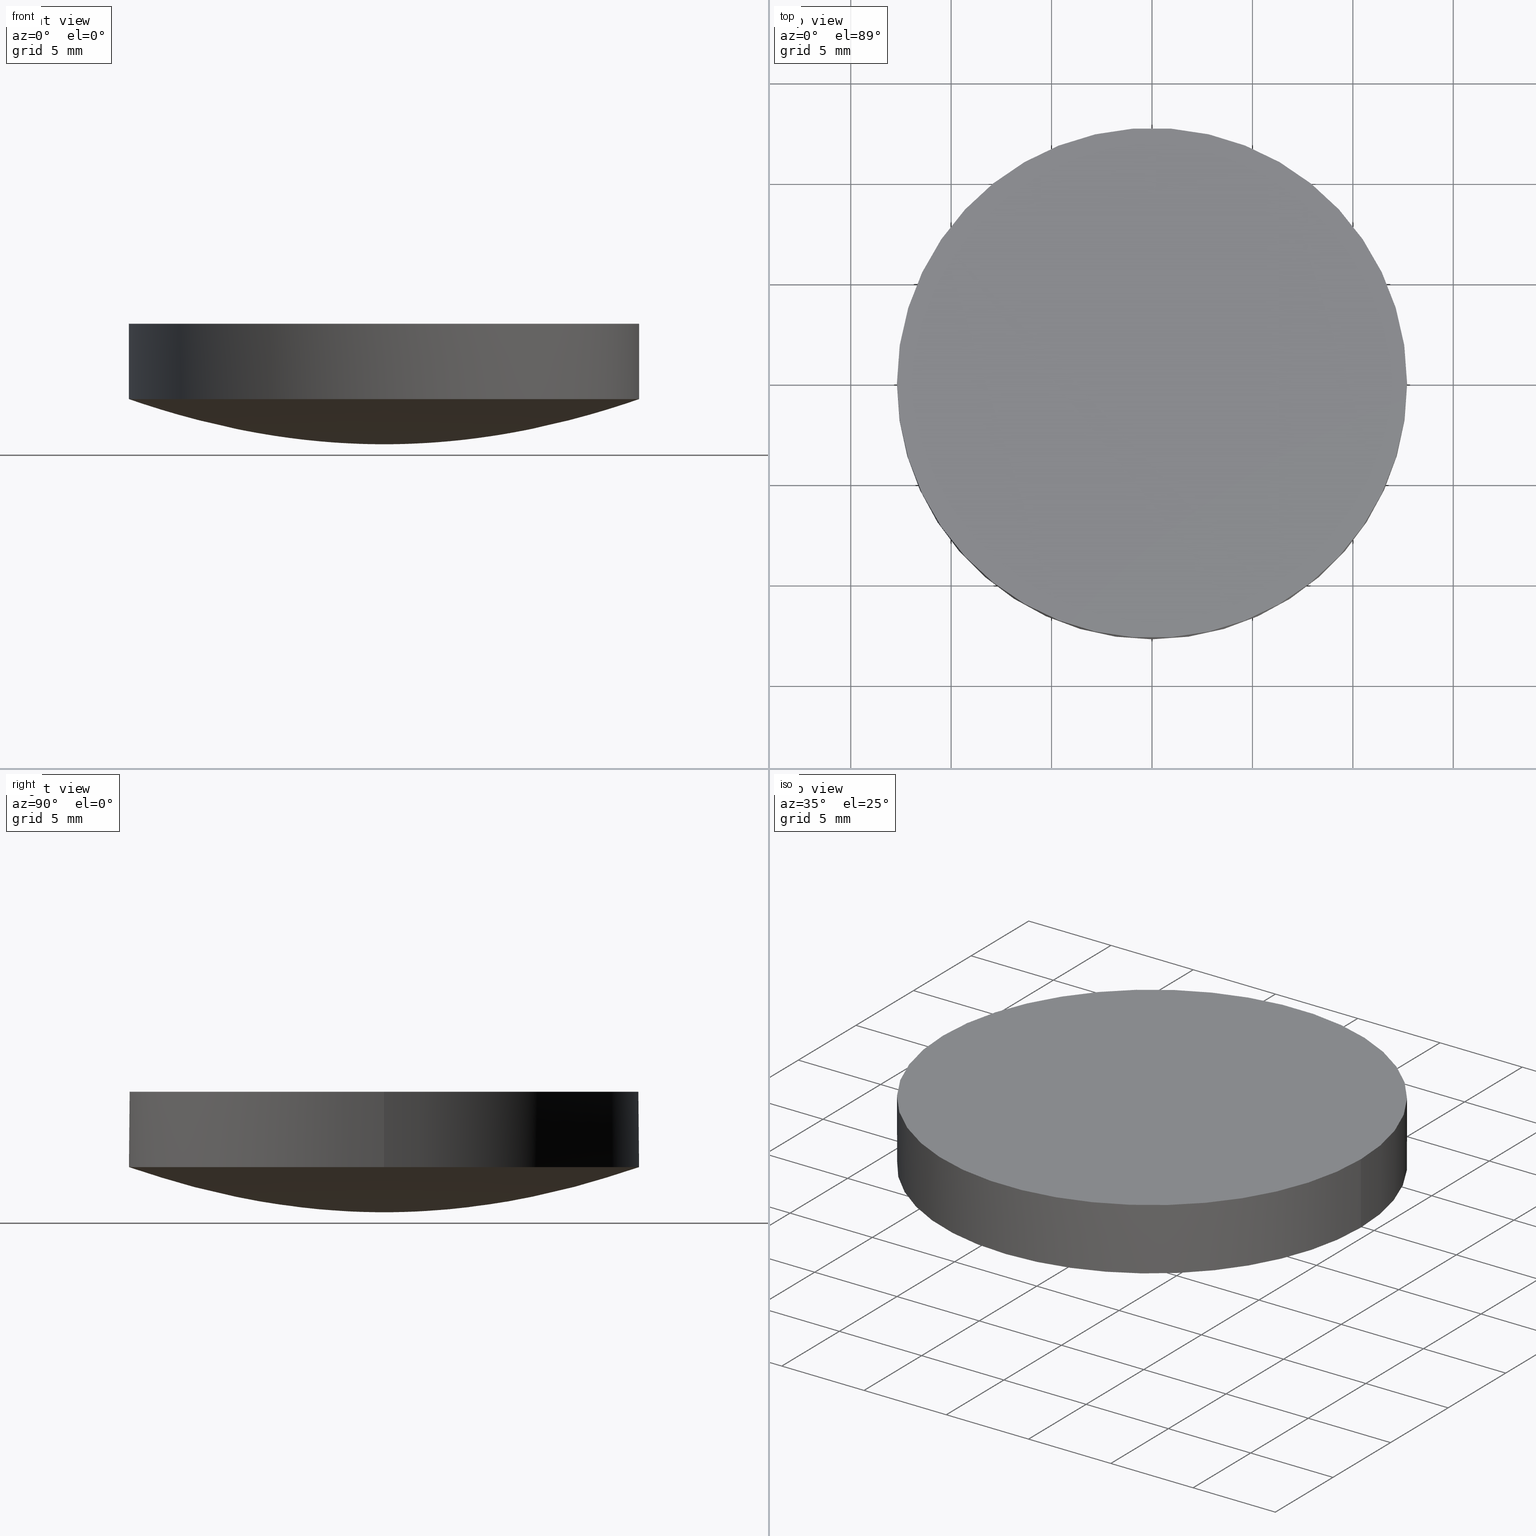
[diagram: canonical four-view strip — front | top / right | iso, engineering-drawing reading convention]
A machine part, canonical four-view strip (front | top / right | iso — engineering-drawing reading convention). The complete STEP part file that produces these views, byte-faithful:
ISO-10303-21;
HEADER;
FILE_DESCRIPTION (( 'STEP AP203' ),
    '1' );
FILE_NAME ('140004.STEP',
    '2021-03-15T05:14:45',
    ( '' ),
    ( '' ),
    'SwSTEP 2.0',
    'SolidWorks 2020',
    '' );
FILE_SCHEMA (( 'CONFIG_CONTROL_DESIGN' ));
ENDSEC;

DATA;
#1 = CARTESIAN_POINT ( 'NONE',  ( 0.9709507383550212145, 0.9709507383550199933, 0.007996846882740939536 ) ) ;
#2 = CARTESIAN_POINT ( 'NONE',  ( 7.588144358352749919, -1.393919504988710285E-15, 0.8112916420088790437 ) ) ;
#3 = EDGE_CURVE ( 'NONE', #450, #67, #276, .T. ) ;
#4 = CARTESIAN_POINT ( 'NONE',  ( -11.12088207166359943, 6.809576316379000233E-16, 1.723977609967809910 ) ) ;
#5 = CARTESIAN_POINT ( 'NONE',  ( -9.292796699924739176E-16, -7.588144358352749919, 0.8112916420088790437 ) ) ;
#6 = CARTESIAN_POINT ( 'NONE',  ( -3.529391070972860422, -3.529391070972860422, 0.1742189932542360098 ) ) ;
#7 = AXIS2_PLACEMENT_3D ( 'NONE', #388, #178, #340 ) ;
#8 = CARTESIAN_POINT ( 'NONE',  ( -3.458006766538920453E-16, -2.823676809465809789, 0.1104526157183659957 ) ) ;
#9 = CARTESIAN_POINT ( 'NONE',  ( 0.000000000000000000, 0.9709507383550211035, 0.007996846882740939536 ) ) ;
#10 = CARTESIAN_POINT ( 'NONE',  ( 0.000000000000000000, 5.117593248833890662, 0.3689892521256640801 ) ) ;
#11 = EDGE_CURVE ( 'NONE', #311, #67, #441, .T. ) ;
#12 = DIRECTION ( 'NONE',  ( 6.993530863780509846E-17, 4.890947394265059749E-33, 1.000000000000000000 ) ) ;
#13 = CARTESIAN_POINT ( 'NONE',  ( 0.000000000000000000, 0.000000000000000000, 0.000000000000000000 ) ) ;
#14 = CARTESIAN_POINT ( 'NONE',  ( -2.269407750182939844E-16, -1.853112057911709964, 0.04462971761608650750 ) ) ;
#15 = CARTESIAN_POINT ( 'NONE',  ( 0.000000000000000000, 7.588144358352749919, 0.8112916420088790437 ) ) ;
#16 = CC_DESIGN_APPROVAL ( #514, ( #327 ) ) ;
#17 = CARTESIAN_POINT ( 'NONE',  ( -6.267244191522530427E-16, -5.117593248833890662, 0.3689892521256640801 ) ) ;
#18 = CARTESIAN_POINT ( 'NONE',  ( -2.823676809465809345, 2.823676809465809345, 0.1104526157183659957 ) ) ;
#19 = CARTESIAN_POINT ( 'NONE',  ( -7.347954222613319716E-16, -6.000059958291039663, 0.5076367197546349797 ) ) ;
#20 = CARTESIAN_POINT ( 'NONE',  ( -3.529391070972860422, 3.529391070972860422, 0.1742189932542360098 ) ) ;
#21 = CARTESIAN_POINT ( 'NONE',  ( 5.117593248833890662, -9.400866287283799585E-16, 0.3689892521256640801 ) ) ;
#22 = CARTESIAN_POINT ( 'NONE',  ( 0.000000000000000000, 0.000000000000000000, 0.000000000000000000 ) ) ;
#23 = EDGE_LOOP ( 'NONE', ( #273, #398, #524, #73 ) ) ;
#24 = CARTESIAN_POINT ( 'NONE',  ( -8.293787562700359217, 8.293787562700359217, 0.9682949744517168611 ) ) ;
#25 = CARTESIAN_POINT ( 'NONE',  ( -9.176139476843300002, -9.176139476843300002, 1.183323889670500062 ) ) ;
#26 = CARTESIAN_POINT ( 'NONE',  ( 1.150626804807467557E-15, -8.881784197001250351E-16, 5.999999999999999112 ) ) ;
#27 = CARTESIAN_POINT ( 'NONE',  ( 1.853112057911709742, -1.853112057911709742, 0.04462971761608650056 ) ) ;
#28 = APPROVAL_DATE_TIME ( #403, #98 ) ;
#29 = EDGE_LOOP ( 'NONE', ( #277, #530, #234, #534, #448 ) ) ;
#30 = COORDINATED_UNIVERSAL_TIME_OFFSET ( 8, 0, .AHEAD. ) ;
#31 = CARTESIAN_POINT ( 'NONE',  ( 0.000000000000000000, 9.176139476843300002, 1.183323889670500062 ) ) ;
#32 = CARTESIAN_POINT ( 'NONE',  ( 1.734723475976807094E-15, -1.345898117247522881E-15, 2.247269223239400482 ) ) ;
#33 = CARTESIAN_POINT ( 'NONE',  ( 1.853112057911709964, -3.404111625274400151E-16, 0.04462971761608650750 ) ) ;
#34 = CARTESIAN_POINT ( 'NONE',  ( -1.555301434917140010E-15, -12.69999999999999929, 2.247269223239400038 ) ) ;
#35 = CARTESIAN_POINT ( 'NONE',  ( -5.117593248833889774, 5.117593248833889774, 0.3689892521256640245 ) ) ;
#36 = CALENDAR_DATE ( 2021, 15, 3 ) ;
#37 = CARTESIAN_POINT ( 'NONE',  ( -4.411899105315640668, 2.701509058742939955E-16, 0.2736846880030949780 ) ) ;
#38 = CARTESIAN_POINT ( 'NONE',  ( -11.12088207166360121, 11.12088207166360121, 1.723977609967809910 ) ) ;
#39 = CARTESIAN_POINT ( 'NONE',  ( 11.12088207166360121, -11.12088207166360121, 1.723977609967809910 ) ) ;
#40 = CARTESIAN_POINT ( 'NONE',  ( 0.000000000000000000, 3.529391070972859978, 0.1742189932542360098 ) ) ;
#41 = CARTESIAN_POINT ( 'NONE',  ( 12.69999999999999929, -2.332952152375710015E-15, 2.247269223239400038 ) ) ;
#42 = CARTESIAN_POINT ( 'NONE',  ( 0.000000000000000000, 6.705730617368449664, 0.6340659673807349517 ) ) ;
#43 = CARTESIAN_POINT ( 'NONE',  ( -1.555301434917140010E-15, -12.69999999999999929, 2.247269223239400038 ) ) ;
#44 = CARTESIAN_POINT ( 'NONE',  ( 0.000000000000000000, 11.12088207166359943, 1.723977609967809910 ) ) ;
#45 = CARTESIAN_POINT ( 'NONE',  ( 8.293787562700371652, 8.293787562700359217, 0.9682949744517168611 ) ) ;
#46 = CARTESIAN_POINT ( 'NONE',  ( -12.00062017183519991, -12.00062017183519991, 2.005515679943810081 ) ) ;
#47 = LOCAL_TIME ( 13, 14, 45.00000000000000000, #72 ) ;
#48 = CC_DESIGN_DATE_AND_TIME_ASSIGNMENT ( #188, #309, ( #163 ) ) ;
#49 = CARTESIAN_POINT ( 'NONE',  ( -1.015696039146910080E-15, -8.293787562700359217, 0.9682949744517169721 ) ) ;
#50 = CARTESIAN_POINT ( 'NONE',  ( -7.588144358352750807, 7.588144358352750807, 0.8112916420088790437 ) ) ;
#51 = CARTESIAN_POINT ( 'NONE',  ( -0.2646510451225539962, 1.620520276501689993E-17, 0.000000000000000000 ) ) ;
#52 = CARTESIAN_POINT ( 'NONE',  ( 5.117593248833900432, 5.117593248833889774, 0.3689892521256640245 ) ) ;
#53 = DATE_AND_TIME ( #210, #469 ) ;
#54 = CARTESIAN_POINT ( 'NONE',  ( 12.70000000000000107, -8.881784197001250351E-16, 2.247269223239399150 ) ) ;
#55 = CARTESIAN_POINT ( 'NONE',  ( 0.9709507383550211035, -1.783607570784349902E-16, 0.007996846882740939536 ) ) ;
#56 = CARTESIAN_POINT ( 'NONE',  ( 0.000000000000000000, 9.881753641688270307, 1.370214453410329991 ) ) ;
#57 = DIRECTION ( 'NONE',  ( 6.993530863780509846E-17, 4.890947394265059749E-33, 1.000000000000000000 ) ) ;
#58 = CARTESIAN_POINT ( 'NONE',  ( -3.458006766538920453E-16, -2.823676809465809789, 0.1104526157183659957 ) ) ;
#59 = CARTESIAN_POINT ( 'NONE',  ( -5.117593248833900432, -5.117593248833889774, 0.3689892521256640245 ) ) ;
#60 = CC_DESIGN_PERSON_AND_ORGANIZATION_ASSIGNMENT ( #361, #527, ( #163 ) ) ;
#61 = CARTESIAN_POINT ( 'NONE',  ( 0.000000000000000000, 0.000000000000000000, 0.000000000000000000 ) ) ;
#62 = CARTESIAN_POINT ( 'NONE',  ( 4.411899105315639780, -4.411899105315650438, 0.2736846880030949780 ) ) ;
#63 = CARTESIAN_POINT ( 'NONE',  ( 9.176139476843300002, 9.176139476843291121, 1.183323889670500062 ) ) ;
#64 = CARTESIAN_POINT ( 'NONE',  ( 7.588144358352750807, 7.588144358352750807, 0.8112916420088790437 ) ) ;
#65 =( LENGTH_UNIT ( ) NAMED_UNIT ( * ) SI_UNIT ( .MILLI., .METRE. ) );
#66 = CC_DESIGN_DATE_AND_TIME_ASSIGNMENT ( #326, #278, ( #371 ) ) ;
#67 = VERTEX_POINT ( 'NONE', #406 ) ;
#68 = CARTESIAN_POINT ( 'NONE',  ( -1.015696039146910080E-15, -8.293787562700359217, 0.9682949744517169721 ) ) ;
#69 = MECHANICAL_CONTEXT ( 'NONE', #532, 'mechanical' ) ;
#70 = CARTESIAN_POINT ( 'NONE',  ( 1.150626804807467557E-15, -8.881784197001250351E-16, 5.999999999999999112 ) ) ;
#71 = CARTESIAN_POINT ( 'NONE',  ( 4.411899105315650438, 4.411899105315639780, 0.2736846880030949780 ) ) ;
#72 = COORDINATED_UNIVERSAL_TIME_OFFSET ( 8, 0, .AHEAD. ) ;
#73 = ORIENTED_EDGE ( 'NONE', *, *, #457, .T. ) ;
#74 = PRODUCT_RELATED_PRODUCT_CATEGORY ( 'detail', '', ( #325 ) ) ;
#75 = DIRECTION ( 'NONE',  ( 6.993530863780509846E-17, 4.890947394265059749E-33, 1.000000000000000000 ) ) ;
#76 = EDGE_LOOP ( 'NONE', ( #405, #324, #487, #116 ) ) ;
#77 = CARTESIAN_POINT ( 'NONE',  ( -1.853112057911709964, 1.134703875091469922E-16, 0.04462971761608650750 ) ) ;
#78 = CARTESIAN_POINT ( 'NONE',  ( -12.00062017183519991, -12.00062017183519991, 2.005515679943810081 ) ) ;
#79 = PERSON_AND_ORGANIZATION ( #100, #505 ) ;
#80 = CARTESIAN_POINT ( 'NONE',  ( 4.411899105315640668, -8.104527176228809510E-16, 0.2736846880030949780 ) ) ;
#81 = CARTESIAN_POINT ( 'NONE',  ( 0.000000000000000000, 12.69999999999999929, 2.247269223239400038 ) ) ;
#82 = CARTESIAN_POINT ( 'NONE',  ( -9.881753641688270307, 6.050828983628121126E-16, 1.370214453410329991 ) ) ;
#83 = CARTESIAN_POINT ( 'NONE',  ( -6.705730617368449664, 4.106075768252340420E-16, 0.6340659673807349517 ) ) ;
#84 = CARTESIAN_POINT ( 'NONE',  ( 0.000000000000000000, 12.00062017183519991, 2.005515679943810081 ) ) ;
#85 = CARTESIAN_POINT ( 'NONE',  ( -0.9709507383550212145, -0.9709507383550212145, 0.007996846882740939536 ) ) ;
#86 = CARTESIAN_POINT ( 'NONE',  ( -12.69999999999999929, -12.69999999999999929, 2.247269223239399594 ) ) ;
#87 = CARTESIAN_POINT ( 'NONE',  ( -5.117593248833890662, 3.133622095761270144E-16, 0.3689892521256640801 ) ) ;
#88 = CARTESIAN_POINT ( 'NONE',  ( 0.000000000000000000, 0.000000000000000000, 0.000000000000000000 ) ) ;
#89 = CARTESIAN_POINT ( 'NONE',  ( 9.881753641688270307, -9.881753641688270307, 1.370214453410330213 ) ) ;
#90 = CARTESIAN_POINT ( 'NONE',  ( -0.2646510451225540517, -0.2646510451225540517, 0.000000000000000000 ) ) ;
#91 = CARTESIAN_POINT ( 'NONE',  ( 6.000059958291040552, -6.000059958291040552, 0.5076367197546349797 ) ) ;
#92 = CARTESIAN_POINT ( 'NONE',  ( -12.00062017183519991, 7.348260540610550253E-16, 2.005515679943810081 ) ) ;
#93 = DIRECTION ( 'NONE',  ( 1.000000000000000000, 0.000000000000000000, -6.829619984160658046E-17 ) ) ;
#94 = CARTESIAN_POINT ( 'NONE',  ( 0.000000000000000000, 3.529391070972859978, 0.1742189932542360098 ) ) ;
#95 = CARTESIAN_POINT ( 'NONE',  ( 0.000000000000000000, 12.69999999999999929, 2.247269223239400038 ) ) ;
#96 = CARTESIAN_POINT ( 'NONE',  ( 0.000000000000000000, 0.2646510451225539962, 0.000000000000000000 ) ) ;
#97 = CARTESIAN_POINT ( 'NONE',  ( 2.823676809465809345, -2.823676809465809345, 0.1104526157183659957 ) ) ;
#98 = APPROVAL ( #528, 'δָ��' ) ;
#99 = CARTESIAN_POINT ( 'NONE',  ( 0.000000000000000000, 9.176139476843300002, 1.183323889670500062 ) ) ;
#100 = PERSON ( 'δָ��', 'δָ��', 'δָ��', ('δָ��'), ('δָ��'), ('δָ��') ) ;
#101 = CARTESIAN_POINT ( 'NONE',  ( 0.000000000000000000, 0.000000000000000000, 0.000000000000000000 ) ) ;
#102 = CARTESIAN_POINT ( 'NONE',  ( -0.9709507383550211035, 5.945358569281179488E-17, 0.007996846882740939536 ) ) ;
#103 = CARTESIAN_POINT ( 'NONE',  ( -9.881753641688270307, -9.881753641688270307, 1.370214453410330213 ) ) ;
#104 = CARTESIAN_POINT ( 'NONE',  ( 0.000000000000000000, 2.823676809465809789, 0.1104526157183659957 ) ) ;
#105 = CARTESIAN_POINT ( 'NONE',  ( 2.823676809465809345, 2.823676809465809345, 0.1104526157183659957 ) ) ;
#106 = CARTESIAN_POINT ( 'NONE',  ( -9.292796699924739176E-16, -7.588144358352749919, 0.8112916420088790437 ) ) ;
#107 = APPROVAL_STATUS ( 'not_yet_approved' ) ;
#108 = CARTESIAN_POINT ( 'NONE',  ( 0.000000000000000000, 1.853112057911709964, 0.04462971761608650750 ) ) ;
#109 = DIRECTION ( 'NONE',  ( -1.000000000000000000, 0.000000000000000000, -3.414809992080328407E-17 ) ) ;
#110 = CARTESIAN_POINT ( 'NONE',  ( -7.588144358352750807, -7.588144358352750807, 0.8112916420088790437 ) ) ;
#111 = CARTESIAN_POINT ( 'NONE',  ( 0.000000000000000000, 0.9709507383550211035, 0.007996846882740939536 ) ) ;
#112 = VERTEX_POINT ( 'NONE', #230 ) ;
#113 = CARTESIAN_POINT ( 'NONE',  ( 8.293787562700359217, -8.293787562700371652, 0.9682949744517168611 ) ) ;
#114 = CARTESIAN_POINT ( 'NONE',  ( -2.823676809465809345, 2.823676809465809345, 0.1104526157183659957 ) ) ;
#115 = APPROVAL_ROLE ( '' ) ;
#116 = ORIENTED_EDGE ( 'NONE', *, *, #148, .T. ) ;
#117 = EDGE_CURVE ( 'NONE', #112, #363, #535, .T. ) ;
#118 = PERSON_AND_ORGANIZATION_ROLE ( 'design_owner' ) ;
#119 = CARTESIAN_POINT ( 'NONE',  ( 9.176139476843291121, -9.176139476843300002, 1.183323889670500062 ) ) ;
#120 = CC_DESIGN_APPROVAL ( #98, ( #163 ) ) ;
#121 = CARTESIAN_POINT ( 'NONE',  ( 0.000000000000000000, 12.00062017183519991, 2.005515679943810081 ) ) ;
#122 = PERSON_AND_ORGANIZATION_ROLE ( 'classification_officer' ) ;
#123 = CARTESIAN_POINT ( 'NONE',  ( -12.69999999999999929, 12.69999999999999929, 2.247269223239399594 ) ) ;
#124 = CARTESIAN_POINT ( 'NONE',  ( -7.588144358352749919, 4.646398349962369588E-16, 0.8112916420088790437 ) ) ;
#125 = CARTESIAN_POINT ( 'NONE',  ( -2.823676809465809789, 1.729003383269460226E-16, 0.1104526157183659957 ) ) ;
#126 = CARTESIAN_POINT ( 'NONE',  ( -1.469652108122110051E-15, -12.00062017183519991, 2.005515679943810081 ) ) ;
#127 = CALENDAR_DATE ( 2021, 15, 3 ) ;
#128 = VECTOR ( 'NONE', #12, 1000.000000000000000 ) ;
#129 = FACE_OUTER_BOUND ( 'NONE', #23, .T. ) ;
#130 = CARTESIAN_POINT ( 'NONE',  ( -1.853112057911709742, -1.853112057911709742, 0.04462971761608650056 ) ) ;
#131 = CARTESIAN_POINT ( 'NONE',  ( 0.000000000000000000, 6.000059958291039663, 0.5076367197546349797 ) ) ;
#132 = CARTESIAN_POINT ( 'NONE',  ( 0.000000000000000000, 0.000000000000000000, 0.000000000000000000 ) ) ;
#133 = CARTESIAN_POINT ( 'NONE',  ( -9.881753641688270307, 9.881753641688270307, 1.370214453410330213 ) ) ;
#134 = CARTESIAN_POINT ( 'NONE',  ( 12.70000000000000107, -8.881784197001250351E-16, 5.999999999999998224 ) ) ;
#135 = VECTOR ( 'NONE', #75, 1000.000000000000000 ) ;
#136 = CARTESIAN_POINT ( 'NONE',  ( 8.881784197001250351E-16, -8.881784197001250351E-16, 2.247269223239400038 ) ) ;
#137 = CARTESIAN_POINT ( 'NONE',  ( -0.9709507383550212145, 0.9709507383550212145, 0.007996846882740939536 ) ) ;
#138 = CARTESIAN_POINT ( 'NONE',  ( 12.69999999999999929, -12.69999999999999929, 2.247269223239399594 ) ) ;
#139 = EDGE_CURVE ( 'NONE', #67, #311, #517, .T. ) ;
#140 = CARTESIAN_POINT ( 'NONE',  ( -8.212151536504669993E-16, -6.705730617368449664, 0.6340659673807349517 ) ) ;
#141 = CARTESIAN_POINT ( 'NONE',  ( -4.411899105315640668, 2.701509058742939955E-16, 0.2736846880030949780 ) ) ;
#142 = CARTESIAN_POINT ( 'NONE',  ( 5.117593248833889774, -5.117593248833900432, 0.3689892521256640245 ) ) ;
#143 = CARTESIAN_POINT ( 'NONE',  ( 0.9709507383550211035, -1.783607570784349902E-16, 0.007996846882740939536 ) ) ;
#144 = CARTESIAN_POINT ( 'NONE',  ( -8.212151536504669993E-16, -6.705730617368449664, 0.6340659673807349517 ) ) ;
#145 = AXIS2_PLACEMENT_3D ( 'NONE', #320, #523, #443 ) ;
#146 = CARTESIAN_POINT ( 'NONE',  ( 0.000000000000000000, 12.00062017183519991, 2.005515679943810081 ) ) ;
#147 = CARTESIAN_POINT ( 'NONE',  ( -0.2646510451225539962, 1.620520276501689993E-17, 0.000000000000000000 ) ) ;
#148 = EDGE_CURVE ( 'NONE', #360, #112, #385, .T. ) ;
#149 = CARTESIAN_POINT ( 'NONE',  ( -1.123752983884580088E-15, -9.176139476843300002, 1.183323889670500062 ) ) ;
#150 = CARTESIAN_POINT ( 'NONE',  ( 0.000000000000000000, 5.117593248833890662, 0.3689892521256640801 ) ) ;
#151 = CARTESIAN_POINT ( 'NONE',  ( 0.000000000000000000, 4.411899105315640668, 0.2736846880030949780 ) ) ;
#152 = CARTESIAN_POINT ( 'NONE',  ( 7.588144358352750807, -7.588144358352750807, 0.8112916420088790437 ) ) ;
#153 =( NAMED_UNIT ( * ) SI_UNIT ( $, .STERADIAN. ) SOLID_ANGLE_UNIT ( ) );
#154 = CARTESIAN_POINT ( 'NONE',  ( -8.293787562700359217, 5.078480195734570121E-16, 0.9682949744517169721 ) ) ;
#155 = CARTESIAN_POINT ( 'NONE',  ( -8.293787562700359217, 8.293787562700359217, 0.9682949744517168611 ) ) ;
#156 = COORDINATED_UNIVERSAL_TIME_OFFSET ( 8, 0, .AHEAD. ) ;
#157 =( NAMED_UNIT ( * ) PLANE_ANGLE_UNIT ( ) SI_UNIT ( $, .RADIAN. ) );
#158 = DIRECTION ( 'NONE',  ( 3.414809992080330256E-17, -3.414809992080330256E-17, -1.000000000000000000 ) ) ;
#159 = CARTESIAN_POINT ( 'NONE',  ( -5.403018117485879909E-16, -4.411899105315640668, 0.2736846880030949780 ) ) ;
#160 = CARTESIAN_POINT ( 'NONE',  ( 0.000000000000000000, 4.411899105315640668, 0.2736846880030949780 ) ) ;
#161 = ADVANCED_FACE ( 'NONE', ( #531 ), #162, .T. ) ;
#162 = PLANE ( 'NONE',  #177 ) ;
#163 = PRODUCT_DEFINITION ( 'δ֪', '', #327, #533 ) ;
#164 = CARTESIAN_POINT ( 'NONE',  ( 11.12088207166359943, -2.042872894913700070E-15, 1.723977609967809910 ) ) ;
#165 = CARTESIAN_POINT ( 'NONE',  ( 7.588144358352750807, -7.588144358352750807, 0.8112916420088790437 ) ) ;
#166 = CARTESIAN_POINT ( 'NONE',  ( -12.69999999999999929, -12.69999999999999929, 2.247269223239399594 ) ) ;
#167 = CARTESIAN_POINT ( 'NONE',  ( 12.00062017183519991, -12.00062017183519991, 2.005515679943810081 ) ) ;
#168 = CARTESIAN_POINT ( 'NONE',  ( 6.000059958291039663, -1.102193133392000028E-15, 0.5076367197546349797 ) ) ;
#169 = APPROVAL_ROLE ( '' ) ;
#170 = CARTESIAN_POINT ( 'NONE',  ( 0.000000000000000000, 8.293787562700359217, 0.9682949744517169721 ) ) ;
#171 = CARTESIAN_POINT ( 'NONE',  ( -3.241040553003370126E-17, -0.2646510451225539962, 0.000000000000000000 ) ) ;
#172 = CARTESIAN_POINT ( 'NONE',  ( -6.000059958291040552, 6.000059958291040552, 0.5076367197546349797 ) ) ;
#173 = CARTESIAN_POINT ( 'NONE',  ( -1.361915263275800047E-15, -11.12088207166359943, 1.723977609967809910 ) ) ;
#174 = CARTESIAN_POINT ( 'NONE',  ( 0.000000000000000000, 0.000000000000000000, 0.000000000000000000 ) ) ;
#175 = CARTESIAN_POINT ( 'NONE',  ( 1.853112057911709742, 1.853112057911709742, 0.04462971761608650056 ) ) ;
#176 =( BOUNDED_SURFACE ( )  B_SPLINE_SURFACE ( 3, 2, ( 
 ( #339, #468, #508, #166, #43, #138, #418, #296, #95 ),
 ( #212, #251, #92, #46, #422, #379, #376, #458, #84 ),
 ( #370, #412, #4, #246, #173, #39, #206, #541, #416 ),
 ( #304, #352, #399, #103, #317, #258, #187, #519, #56 ),
 ( #394, #357, #227, #25, #149, #307, #472, #63, #99 ),
 ( #223, #155, #477, #391, #68, #511, #515, #526, #428 ),
 ( #442, #300, #229, #110, #106, #152, #190, #64, #15 ),
 ( #183, #192, #475, #349, #144, #265, #269, #435, #226 ),
 ( #386, #486, #266, #483, #19, #438, #396, #354, #220 ),
 ( #10, #432, #180, #59, #345, #142, #21, #522, #313 ),
 ( #262, #494, #37, #492, #159, #328, #80, #71, #207 ),
 ( #368, #490, #203, #538, #452, #544, #330, #232, #40 ),
 ( #336, #114, #125, #455, #445, #401, #244, #274, #413 ),
 ( #542, #498, #77, #130, #238, #27, #33, #195, #285 ),
 ( #459, #201, #366, #85, #500, #464, #143, #1, #473 ),
 ( #96, #512, #51, #90, #171, #253, #338, #301, #259 ),
 ( #343, #383, #297, #174, #101, #462, #61, #132, #224 ) ),
 .UNSPECIFIED., .F., .T., .T. ) 
 B_SPLINE_SURFACE_WITH_KNOTS ( ( 4, 1, 1, 1, 1, 1, 1, 1, 1, 1, 1, 1, 1, 1, 4 ),
 ( 3, 2, 2, 2, 3 ),
 ( 0.000000000000000000, 0.1713303433968769995, 0.2138002220556740052, 0.2983038402943499756, 0.3403375798742280245, 0.4240257264242249802, 0.4656801333943419996, 0.5486747096414229530, 0.5900148789183859988, 0.6724530698831030495, 0.7135510915708570545, 0.7955825529604799717, 0.8365159926623489950, 0.9387247161821089536, 1.000000000000000000 ),
 ( 0.000000000000000000, 90.00000000000000000, 180.0000000000000000, 270.0000000000000000, 360.0000000000000000 ),
 .UNSPECIFIED. ) 
 GEOMETRIC_REPRESENTATION_ITEM ( )  RATIONAL_B_SPLINE_SURFACE ( (
 ( 1.000000000000000000, 0.7071067811865480168, 1.000000000000000000, 0.7071067811865480168, 1.000000000000000000, 0.7071067811865480168, 1.000000000000000000, 0.7071067811865480168, 1.000000000000000000),
 ( 1.000000000000000000, 0.7071067811865480168, 1.000000000000000000, 0.7071067811865480168, 1.000000000000000000, 0.7071067811865480168, 1.000000000000000000, 0.7071067811865480168, 1.000000000000000000),
 ( 1.000000000000000000, 0.7071067811865480168, 1.000000000000000000, 0.7071067811865480168, 1.000000000000000000, 0.7071067811865480168, 1.000000000000000000, 0.7071067811865480168, 1.000000000000000000),
 ( 1.000000000000000000, 0.7071067811865480168, 1.000000000000000000, 0.7071067811865480168, 1.000000000000000000, 0.7071067811865480168, 1.000000000000000000, 0.7071067811865480168, 1.000000000000000000),
 ( 1.000000000000000000, 0.7071067811865480168, 1.000000000000000000, 0.7071067811865480168, 1.000000000000000000, 0.7071067811865480168, 1.000000000000000000, 0.7071067811865480168, 1.000000000000000000),
 ( 1.000000000000000000, 0.7071067811865480168, 1.000000000000000000, 0.7071067811865480168, 1.000000000000000000, 0.7071067811865480168, 1.000000000000000000, 0.7071067811865480168, 1.000000000000000000),
 ( 1.000000000000000000, 0.7071067811865480168, 1.000000000000000000, 0.7071067811865480168, 1.000000000000000000, 0.7071067811865480168, 1.000000000000000000, 0.7071067811865480168, 1.000000000000000000),
 ( 1.000000000000000000, 0.7071067811865480168, 1.000000000000000000, 0.7071067811865480168, 1.000000000000000000, 0.7071067811865480168, 1.000000000000000000, 0.7071067811865480168, 1.000000000000000000),
 ( 1.000000000000000000, 0.7071067811865480168, 1.000000000000000000, 0.7071067811865480168, 1.000000000000000000, 0.7071067811865480168, 1.000000000000000000, 0.7071067811865480168, 1.000000000000000000),
 ( 1.000000000000000000, 0.7071067811865480168, 1.000000000000000000, 0.7071067811865480168, 1.000000000000000000, 0.7071067811865480168, 1.000000000000000000, 0.7071067811865480168, 1.000000000000000000),
 ( 1.000000000000000000, 0.7071067811865480168, 1.000000000000000000, 0.7071067811865480168, 1.000000000000000000, 0.7071067811865480168, 1.000000000000000000, 0.7071067811865480168, 1.000000000000000000),
 ( 1.000000000000000000, 0.7071067811865480168, 1.000000000000000000, 0.7071067811865480168, 1.000000000000000000, 0.7071067811865480168, 1.000000000000000000, 0.7071067811865480168, 1.000000000000000000),
 ( 1.000000000000000000, 0.7071067811865480168, 1.000000000000000000, 0.7071067811865480168, 1.000000000000000000, 0.7071067811865480168, 1.000000000000000000, 0.7071067811865480168, 1.000000000000000000),
 ( 1.000000000000000000, 0.7071067811865480168, 1.000000000000000000, 0.7071067811865480168, 1.000000000000000000, 0.7071067811865480168, 1.000000000000000000, 0.7071067811865480168, 1.000000000000000000),
 ( 1.000000000000000000, 0.7071067811865480168, 1.000000000000000000, 0.7071067811865480168, 1.000000000000000000, 0.7071067811865480168, 1.000000000000000000, 0.7071067811865480168, 1.000000000000000000),
 ( 1.000000000000000000, 0.7071067811865480168, 1.000000000000000000, 0.7071067811865480168, 1.000000000000000000, 0.7071067811865480168, 1.000000000000000000, 0.7071067811865480168, 1.000000000000000000),
 ( 1.000000000000000000, 0.7071067811865480168, 1.000000000000000000, 0.7071067811865480168, 1.000000000000000000, 0.7071067811865480168, 1.000000000000000000, 0.7071067811865480168, 1.000000000000000000) ) ) 
 REPRESENTATION_ITEM ( '' )  SURFACE ( )  );
#177 = AXIS2_PLACEMENT_3D ( 'NONE', #214, #378, #493 ) ;
#178 = DIRECTION ( 'NONE',  ( 3.414809992080330256E-17, -3.414809992080330256E-17, -1.000000000000000000 ) ) ;
#179 = CARTESIAN_POINT ( 'NONE',  ( 0.000000000000000000, 0.2646510451225539962, 0.000000000000000000 ) ) ;
#180 = CARTESIAN_POINT ( 'NONE',  ( -5.117593248833890662, 3.133622095761270144E-16, 0.3689892521256640801 ) ) ;
#181 = CARTESIAN_POINT ( 'NONE',  ( -1.555301434917141588E-15, -12.70000000000000462, 2.247269223239400926 ) ) ;
#182 = CARTESIAN_POINT ( 'NONE',  ( 5.117593248833889774, -5.117593248833900432, 0.3689892521256640245 ) ) ;
#183 = CARTESIAN_POINT ( 'NONE',  ( 0.000000000000000000, 6.705730617368449664, 0.6340659673807349517 ) ) ;
#184 = CARTESIAN_POINT ( 'NONE',  ( -2.269407750182939844E-16, -1.853112057911709964, 0.04462971761608650750 ) ) ;
#185 = CARTESIAN_POINT ( 'NONE',  ( -9.176139476843300002, -9.176139476843300002, 1.183323889670500062 ) ) ;
#186 = CARTESIAN_POINT ( 'NONE',  ( -4.322257478006169948E-16, -3.529391070972859978, 0.1742189932542360098 ) ) ;
#187 = CARTESIAN_POINT ( 'NONE',  ( 9.881753641688270307, -1.815248695088439888E-15, 1.370214453410329991 ) ) ;
#188 = DATE_AND_TIME ( #198, #419 ) ;
#189 = CARTESIAN_POINT ( 'NONE',  ( 0.000000000000000000, 3.529391070972859978, 0.1742189932542360098 ) ) ;
#190 = CARTESIAN_POINT ( 'NONE',  ( 7.588144358352749919, -1.393919504988710285E-15, 0.8112916420088790437 ) ) ;
#191 = CARTESIAN_POINT ( 'NONE',  ( -8.293787562700371652, -8.293787562700359217, 0.9682949744517168611 ) ) ;
#192 = CARTESIAN_POINT ( 'NONE',  ( -6.705730617368448776, 6.705730617368448776, 0.6340659673807349517 ) ) ;
#193 = APPLICATION_PROTOCOL_DEFINITION ( 'international standard', 'config_control_design', 1994, #425 ) ;
#194 = DIRECTION ( 'NONE',  ( -6.993530863780509846E-17, -4.890947394265059749E-33, -1.000000000000000000 ) ) ;
#195 = CARTESIAN_POINT ( 'NONE',  ( 1.853112057911709742, 1.853112057911709742, 0.04462971761608650056 ) ) ;
#196 = CC_DESIGN_PERSON_AND_ORGANIZATION_ASSIGNMENT ( #275, #118, ( #325 ) ) ;
#197 = PERSON_AND_ORGANIZATION ( #100, #505 ) ;
#198 = CALENDAR_DATE ( 2021, 15, 3 ) ;
#199 = ORIENTED_EDGE ( 'NONE', *, *, #451, .F. ) ;
#200 = ORIENTED_EDGE ( 'NONE', *, *, #252, .F. ) ;
#201 = CARTESIAN_POINT ( 'NONE',  ( -0.9709507383550212145, 0.9709507383550212145, 0.007996846882740939536 ) ) ;
#202 =( GEOMETRIC_REPRESENTATION_CONTEXT ( 3 ) GLOBAL_UNCERTAINTY_ASSIGNED_CONTEXT ( ( #449 ) ) GLOBAL_UNIT_ASSIGNED_CONTEXT ( ( #65, #157, #153 ) ) REPRESENTATION_CONTEXT ( 'NONE', 'WORKASPACE' ) );
#203 = CARTESIAN_POINT ( 'NONE',  ( -3.529391070972859978, 2.161128739003080043E-16, 0.1742189932542360098 ) ) ;
#204 = CARTESIAN_POINT ( 'NONE',  ( -11.12088207166360121, -11.12088207166360121, 1.723977609967809910 ) ) ;
#205 = CARTESIAN_POINT ( 'NONE',  ( -7.588144358352750807, -7.588144358352750807, 0.8112916420088790437 ) ) ;
#206 = CARTESIAN_POINT ( 'NONE',  ( 11.12088207166359943, -2.042872894913700070E-15, 1.723977609967809910 ) ) ;
#207 = CARTESIAN_POINT ( 'NONE',  ( 0.000000000000000000, 4.411899105315640668, 0.2736846880030949780 ) ) ;
#208 = CARTESIAN_POINT ( 'NONE',  ( -9.176139476843300002, 9.176139476843300002, 1.183323889670500062 ) ) ;
#209 = CARTESIAN_POINT ( 'NONE',  ( -6.000059958291040552, -6.000059958291040552, 0.5076367197546349797 ) ) ;
#210 = CALENDAR_DATE ( 2021, 15, 3 ) ;
#211 = CARTESIAN_POINT ( 'NONE',  ( 11.12088207166360121, -11.12088207166360121, 1.723977609967809910 ) ) ;
#212 = CARTESIAN_POINT ( 'NONE',  ( 0.000000000000000000, 12.00062017183519991, 2.005515679943810081 ) ) ;
#213 = CARTESIAN_POINT ( 'NONE',  ( 0.000000000000000000, 0.000000000000000000, 0.000000000000000000 ) ) ;
#214 = CARTESIAN_POINT ( 'NONE',  ( 0.000000000000000000, 26.11199999999999832, 6.000000000000000000 ) ) ;
#215 = CARTESIAN_POINT ( 'NONE',  ( -9.292796699924739176E-16, -7.588144358352749919, 0.8112916420088790437 ) ) ;
#216 = CARTESIAN_POINT ( 'NONE',  ( -1.123752983884580088E-15, -9.176139476843300002, 1.183323889670500062 ) ) ;
#217 = CARTESIAN_POINT ( 'NONE',  ( 0.000000000000000000, 5.117593248833890662, 0.3689892521256640801 ) ) ;
#218 = DIRECTION ( 'NONE',  ( 1.000000000000000000, 0.000000000000000000, -6.829619984160658046E-17 ) ) ;
#219 = CARTESIAN_POINT ( 'NONE',  ( 0.9709507383550212145, 0.9709507383550199933, 0.007996846882740939536 ) ) ;
#220 = CARTESIAN_POINT ( 'NONE',  ( 0.000000000000000000, 6.000059958291039663, 0.5076367197546349797 ) ) ;
#221 = CYLINDRICAL_SURFACE ( 'NONE', #485, 12.69999999999999929 ) ;
#222 = CARTESIAN_POINT ( 'NONE',  ( 0.000000000000000000, 0.2646510451225539962, 0.000000000000000000 ) ) ;
#223 = CARTESIAN_POINT ( 'NONE',  ( 0.000000000000000000, 8.293787562700359217, 0.9682949744517169721 ) ) ;
#224 = CARTESIAN_POINT ( 'NONE',  ( 0.000000000000000000, 0.000000000000000000, 0.000000000000000000 ) ) ;
#225 = CARTESIAN_POINT ( 'NONE',  ( 0.000000000000000000, 1.853112057911709964, 0.04462971761608650750 ) ) ;
#226 = CARTESIAN_POINT ( 'NONE',  ( 0.000000000000000000, 6.705730617368449664, 0.6340659673807349517 ) ) ;
#227 = CARTESIAN_POINT ( 'NONE',  ( -9.176139476843300002, 5.618764919422910300E-16, 1.183323889670500062 ) ) ;
#228 = ORIENTED_EDGE ( 'NONE', *, *, #139, .T. ) ;
#229 = CARTESIAN_POINT ( 'NONE',  ( -7.588144358352749919, 4.646398349962369588E-16, 0.8112916420088790437 ) ) ;
#230 = CARTESIAN_POINT ( 'NONE',  ( 12.70000000000000462, -8.881784197001248379E-16, 2.247269223239400926 ) ) ;
#231 = ADVANCED_FACE ( 'NONE', ( #454 ), #439, .T. ) ;
#232 = CARTESIAN_POINT ( 'NONE',  ( 3.529391070972860422, 3.529391070972860422, 0.1742189932542360098 ) ) ;
#233 = CALENDAR_DATE ( 2021, 15, 3 ) ;
#234 = ORIENTED_EDGE ( 'NONE', *, *, #117, .F. ) ;
#235 = DIRECTION ( 'NONE',  ( -6.993530863780509846E-17, -4.890947394265059749E-33, -1.000000000000000000 ) ) ;
#236 = ADVANCED_FACE ( 'NONE', ( #129 ), #176, .T. ) ;
#237 = VERTEX_POINT ( 'NONE', #88 ) ;
#238 = CARTESIAN_POINT ( 'NONE',  ( -2.269407750182939844E-16, -1.853112057911709964, 0.04462971761608650750 ) ) ;
#239 = CARTESIAN_POINT ( 'NONE',  ( 12.00062017183519991, 12.00062017183519991, 2.005515679943810081 ) ) ;
#240 = CARTESIAN_POINT ( 'NONE',  ( 0.000000000000000000, 8.293787562700359217, 0.9682949744517169721 ) ) ;
#241 = APPROVAL_STATUS ( 'not_yet_approved' ) ;
#242 = PRODUCT_DEFINITION_SHAPE ( 'NONE', 'NONE',  #163 ) ;
#243 = CIRCLE ( 'NONE', #7, 12.70000000000000284 ) ;
#244 = CARTESIAN_POINT ( 'NONE',  ( 2.823676809465809789, -5.187010149808380186E-16, 0.1104526157183659957 ) ) ;
#245 = CARTESIAN_POINT ( 'NONE',  ( 0.000000000000000000, 9.176139476843300002, 1.183323889670500062 ) ) ;
#246 = CARTESIAN_POINT ( 'NONE',  ( -11.12088207166360121, -11.12088207166360121, 1.723977609967809910 ) ) ;
#247 = APPROVAL_DATE_TIME ( #537, #504 ) ;
#248 = CARTESIAN_POINT ( 'NONE',  ( -5.403018117485879909E-16, -4.411899105315640668, 0.2736846880030949780 ) ) ;
#249 = CARTESIAN_POINT ( 'NONE',  ( -12.00062017183519991, 12.00062017183519991, 2.005515679943810081 ) ) ;
#250 = CARTESIAN_POINT ( 'NONE',  ( 7.588144358352750807, 7.588144358352750807, 0.8112916420088790437 ) ) ;
#251 = CARTESIAN_POINT ( 'NONE',  ( -12.00062017183519991, 12.00062017183519991, 2.005515679943810081 ) ) ;
#252 = EDGE_CURVE ( 'NONE', #450, #360, #292, .T. ) ;
#253 = CARTESIAN_POINT ( 'NONE',  ( 0.2646510451225540517, -0.2646510451225540517, 0.000000000000000000 ) ) ;
#254 = CARTESIAN_POINT ( 'NONE',  ( -1.853112057911709742, 1.853112057911709742, 0.04462971761608650056 ) ) ;
#255 = CARTESIAN_POINT ( 'NONE',  ( -12.70000000000000107, 6.671230152170136933E-16, 2.247269223239400038 ) ) ;
#256 = CARTESIAN_POINT ( 'NONE',  ( 1.853112057911709742, -1.853112057911709742, 0.04462971761608650056 ) ) ;
#257 = APPROVAL_PERSON_ORGANIZATION ( #79, #504, #169 ) ;
#258 = CARTESIAN_POINT ( 'NONE',  ( 9.881753641688270307, -9.881753641688270307, 1.370214453410330213 ) ) ;
#259 = CARTESIAN_POINT ( 'NONE',  ( 0.000000000000000000, 0.2646510451225539962, 0.000000000000000000 ) ) ;
#260 = CARTESIAN_POINT ( 'NONE',  ( 0.2646510451225540517, 0.2646510451225540517, 0.000000000000000000 ) ) ;
#261 = CC_DESIGN_PERSON_AND_ORGANIZATION_ASSIGNMENT ( #197, #322, ( #327 ) ) ;
#262 = CARTESIAN_POINT ( 'NONE',  ( 0.000000000000000000, 4.411899105315640668, 0.2736846880030949780 ) ) ;
#263 = CARTESIAN_POINT ( 'NONE',  ( -7.347954222613319716E-16, -6.000059958291039663, 0.5076367197546349797 ) ) ;
#264 = CARTESIAN_POINT ( 'NONE',  ( 0.000000000000000000, 0.000000000000000000, 0.000000000000000000 ) ) ;
#265 = CARTESIAN_POINT ( 'NONE',  ( 6.705730617368448776, -6.705730617368448776, 0.6340659673807349517 ) ) ;
#266 = CARTESIAN_POINT ( 'NONE',  ( -6.000059958291039663, 3.673977111306659858E-16, 0.5076367197546349797 ) ) ;
#267 = CARTESIAN_POINT ( 'NONE',  ( 0.000000000000000000, 0.2646510451225539962, 0.000000000000000000 ) ) ;
#268 = ORIENTED_EDGE ( 'NONE', *, *, #148, .F. ) ;
#269 = CARTESIAN_POINT ( 'NONE',  ( 6.705730617368449664, -1.231822730475699957E-15, 0.6340659673807349517 ) ) ;
#270 = AXIS2_PLACEMENT_3D ( 'NONE', #529, #158, #319 ) ;
#271 = APPLICATION_PROTOCOL_DEFINITION ( 'international standard', 'config_control_design', 1994, #532 ) ;
#272 = EDGE_CURVE ( 'NONE', #363, #237, #312, .T. ) ;
#273 = ORIENTED_EDGE ( 'NONE', *, *, #272, .F. ) ;
#274 = CARTESIAN_POINT ( 'NONE',  ( 2.823676809465809345, 2.823676809465809345, 0.1104526157183659957 ) ) ;
#275 = PERSON_AND_ORGANIZATION ( #100, #505 ) ;
#276 = LINE ( 'NONE', #407, #135 ) ;
#277 = ORIENTED_EDGE ( 'NONE', *, *, #3, .F. ) ;
#278 = DATE_TIME_ROLE ( 'classification_date' ) ;
#279 = CARTESIAN_POINT ( 'NONE',  ( 12.00062017183519991, -2.204478162183170006E-15, 2.005515679943810081 ) ) ;
#280 = CARTESIAN_POINT ( 'NONE',  ( -6.000059958291039663, 3.673977111306659858E-16, 0.5076367197546349797 ) ) ;
#281 = CARTESIAN_POINT ( 'NONE',  ( 0.000000000000000000, 0.000000000000000000, 0.000000000000000000 ) ) ;
#282 = AXIS2_PLACEMENT_3D ( 'NONE', #509, #503, #392 ) ;
#283 = CARTESIAN_POINT ( 'NONE',  ( 0.000000000000000000, 9.881753641688270307, 1.370214453410329991 ) ) ;
#284 = ADVANCED_FACE ( 'NONE', ( #470 ), #221, .T. ) ;
#285 = CARTESIAN_POINT ( 'NONE',  ( 0.000000000000000000, 1.853112057911709964, 0.04462971761608650750 ) ) ;
#286 = CARTESIAN_POINT ( 'NONE',  ( 0.000000000000000000, 6.705730617368449664, 0.6340659673807349517 ) ) ;
#287 = CARTESIAN_POINT ( 'NONE',  ( -4.322257478006169948E-16, -3.529391070972859978, 0.1742189932542360098 ) ) ;
#288 = CARTESIAN_POINT ( 'NONE',  ( -1.210165796725620084E-15, -9.881753641688270307, 1.370214453410329991 ) ) ;
#289 = CARTESIAN_POINT ( 'NONE',  ( -6.705730617368448776, 6.705730617368448776, 0.6340659673807349517 ) ) ;
#290 = CARTESIAN_POINT ( 'NONE',  ( -3.851859888774471706E-31, 12.70000000000000284, 2.247269223239400038 ) ) ;
#291 = CARTESIAN_POINT ( 'NONE',  ( -7.347954222613319716E-16, -6.000059958291039663, 0.5076367197546349797 ) ) ;
#292 = CIRCLE ( 'NONE', #282, 12.70000000000000284 ) ;
#293 = CARTESIAN_POINT ( 'NONE',  ( -1.361915263275800047E-15, -11.12088207166359943, 1.723977609967809910 ) ) ;
#294 = CARTESIAN_POINT ( 'NONE',  ( -1.123752983884580088E-15, -9.176139476843300002, 1.183323889670500062 ) ) ;
#295 = CARTESIAN_POINT ( 'NONE',  ( 0.000000000000000000, 4.411899105315640668, 0.2736846880030949780 ) ) ;
#296 = CARTESIAN_POINT ( 'NONE',  ( 12.69999999999999929, 12.69999999999999929, 2.247269223239399594 ) ) ;
#297 = CARTESIAN_POINT ( 'NONE',  ( 0.000000000000000000, 0.000000000000000000, 0.000000000000000000 ) ) ;
#298 = CARTESIAN_POINT ( 'NONE',  ( -3.241040553003370126E-17, -0.2646510451225539962, 0.000000000000000000 ) ) ;
#299 = CC_DESIGN_APPROVAL ( #504, ( #371 ) ) ;
#300 = CARTESIAN_POINT ( 'NONE',  ( -7.588144358352750807, 7.588144358352750807, 0.8112916420088790437 ) ) ;
#301 = CARTESIAN_POINT ( 'NONE',  ( 0.2646510451225540517, 0.2646510451225540517, 0.000000000000000000 ) ) ;
#302 = CARTESIAN_POINT ( 'NONE',  ( 2.823676809465809789, -5.187010149808380186E-16, 0.1104526157183659957 ) ) ;
#303 = AXIS2_PLACEMENT_3D ( 'NONE', #136, #57, #93 ) ;
#304 = CARTESIAN_POINT ( 'NONE',  ( 0.000000000000000000, 9.881753641688270307, 1.370214453410329991 ) ) ;
#305 = CARTESIAN_POINT ( 'NONE',  ( -3.851859888774471706E-31, 12.70000000000000284, 2.247269223239400038 ) ) ;
#306 = CARTESIAN_POINT ( 'NONE',  ( -0.2646510451225540517, -0.2646510451225540517, 0.000000000000000000 ) ) ;
#307 = CARTESIAN_POINT ( 'NONE',  ( 9.176139476843291121, -9.176139476843300002, 1.183323889670500062 ) ) ;
#308 = SECURITY_CLASSIFICATION_LEVEL ( 'unclassified' ) ;
#309 = DATE_TIME_ROLE ( 'creation_date' ) ;
#310 = CARTESIAN_POINT ( 'NONE',  ( 0.000000000000000000, 1.853112057911709964, 0.04462971761608650750 ) ) ;
#311 = VERTEX_POINT ( 'NONE', #134 ) ;
#312 = B_SPLINE_CURVE_WITH_KNOTS ( 'NONE', 3,
 ( #181, #423, #293, #347, #216, #49, #5, #140, #263, #17, #248, #287, #8, #184, #381, #420, #213 ),
 .UNSPECIFIED., .F., .F.,
 ( 4, 1, 1, 1, 1, 1, 1, 1, 1, 1, 1, 1, 1, 1, 4 ),
 ( 0.000000000000000000, 0.1713303433968769995, 0.2138002220556740052, 0.2983038402943499756, 0.3403375798742280245, 0.4240257264242249802, 0.4656801333943419996, 0.5486747096414229530, 0.5900148789183859988, 0.6724530698831030495, 0.7135510915708570545, 0.7955825529604799717, 0.8365159926623489950, 0.9387247161821089536, 1.000000000000000000 ),
 .UNSPECIFIED. ) ;
#313 = CARTESIAN_POINT ( 'NONE',  ( 0.000000000000000000, 5.117593248833890662, 0.3689892521256640801 ) ) ;
#314 = PERSON_AND_ORGANIZATION ( #100, #505 ) ;
#315 = CARTESIAN_POINT ( 'NONE',  ( 0.000000000000000000, 7.588144358352749919, 0.8112916420088790437 ) ) ;
#316 = EDGE_LOOP ( 'NONE', ( #365, #440 ) ) ;
#317 = CARTESIAN_POINT ( 'NONE',  ( -1.210165796725620084E-15, -9.881753641688270307, 1.370214453410329991 ) ) ;
#318 = AXIS2_PLACEMENT_3D ( 'NONE', #32, #400, #109 ) ;
#319 = DIRECTION ( 'NONE',  ( -1.000000000000000000, 0.000000000000000000, -3.414809992080328407E-17 ) ) ;
#320 = CARTESIAN_POINT ( 'NONE',  ( 0.000000000000000000, 0.000000000000000000, 0.000000000000000000 ) ) ;
#321 = CARTESIAN_POINT ( 'NONE',  ( 0.000000000000000000, 0.000000000000000000, 0.000000000000000000 ) ) ;
#322 = PERSON_AND_ORGANIZATION_ROLE ( 'design_supplier' ) ;
#323 = LOCAL_TIME ( 13, 14, 45.00000000000000000, #373 ) ;
#324 = ORIENTED_EDGE ( 'NONE', *, *, #272, .T. ) ;
#325 = PRODUCT ( '140004', '140004', '', ( #69 ) ) ;
#326 = DATE_AND_TIME ( #127, #323 ) ;
#327 = PRODUCT_DEFINITION_FORMATION_WITH_SPECIFIED_SOURCE ( '�κ�', '', #325, .NOT_KNOWN. ) ;
#328 = CARTESIAN_POINT ( 'NONE',  ( 4.411899105315639780, -4.411899105315650438, 0.2736846880030949780 ) ) ;
#329 = CARTESIAN_POINT ( 'NONE',  ( 0.000000000000000000, 9.176139476843300002, 1.183323889670500062 ) ) ;
#330 = CARTESIAN_POINT ( 'NONE',  ( 3.529391070972859978, -6.483386217009249744E-16, 0.1742189932542360098 ) ) ;
#331 = CARTESIAN_POINT ( 'NONE',  ( -1.361915263275800047E-15, -11.12088207166359943, 1.723977609967809910 ) ) ;
#332 = CARTESIAN_POINT ( 'NONE',  ( 6.705730617368449664, -1.231822730475699957E-15, 0.6340659673807349517 ) ) ;
#333 = ADVANCED_BREP_SHAPE_REPRESENTATION ( '140004', ( #495, #145 ), #202 ) ;
#334 = CARTESIAN_POINT ( 'NONE',  ( -8.212151536504669993E-16, -6.705730617368449664, 0.6340659673807349517 ) ) ;
#335 = SHAPE_DEFINITION_REPRESENTATION ( #242, #333 ) ;
#336 = CARTESIAN_POINT ( 'NONE',  ( 0.000000000000000000, 2.823676809465809789, 0.1104526157183659957 ) ) ;
#337 = CARTESIAN_POINT ( 'NONE',  ( -12.69999999999999929, 7.776507174585690191E-16, 2.247269223239400038 ) ) ;
#338 = CARTESIAN_POINT ( 'NONE',  ( 0.2646510451225539962, -4.861560829505060119E-17, 0.000000000000000000 ) ) ;
#339 = CARTESIAN_POINT ( 'NONE',  ( 0.000000000000000000, 12.69999999999999929, 2.247269223239400038 ) ) ;
#340 = DIRECTION ( 'NONE',  ( -1.000000000000000000, 0.000000000000000000, -3.414809992080328407E-17 ) ) ;
#341 = CARTESIAN_POINT ( 'NONE',  ( 0.000000000000000000, 0.9709507383550211035, 0.007996846882740939536 ) ) ;
#342 = CLOSED_SHELL ( 'NONE', ( #231, #387, #236, #284, #161 ) ) ;
#343 = CARTESIAN_POINT ( 'NONE',  ( 0.000000000000000000, 0.000000000000000000, 0.000000000000000000 ) ) ;
#344 = CARTESIAN_POINT ( 'NONE',  ( 4.411899105315650438, 4.411899105315639780, 0.2736846880030949780 ) ) ;
#345 = CARTESIAN_POINT ( 'NONE',  ( -6.267244191522530427E-16, -5.117593248833890662, 0.3689892521256640801 ) ) ;
#346 = CC_DESIGN_PERSON_AND_ORGANIZATION_ASSIGNMENT ( #314, #446, ( #327 ) ) ;
#347 = CARTESIAN_POINT ( 'NONE',  ( -1.210165796725620084E-15, -9.881753641688270307, 1.370214453410329991 ) ) ;
#348 = CARTESIAN_POINT ( 'NONE',  ( 0.2646510451225539962, -4.861560829505060119E-17, 0.000000000000000000 ) ) ;
#349 = CARTESIAN_POINT ( 'NONE',  ( -6.705730617368448776, -6.705730617368448776, 0.6340659673807349517 ) ) ;
#350 = CARTESIAN_POINT ( 'NONE',  ( 0.000000000000000000, 8.293787562700359217, 0.9682949744517169721 ) ) ;
#351 = CARTESIAN_POINT ( 'NONE',  ( -5.403018117485879909E-16, -4.411899105315640668, 0.2736846880030949780 ) ) ;
#352 = CARTESIAN_POINT ( 'NONE',  ( -9.881753641688270307, 9.881753641688270307, 1.370214453410330213 ) ) ;
#353 = CARTESIAN_POINT ( 'NONE',  ( 0.000000000000000000, 2.823676809465809789, 0.1104526157183659957 ) ) ;
#354 = CARTESIAN_POINT ( 'NONE',  ( 6.000059958291040552, 6.000059958291040552, 0.5076367197546349797 ) ) ;
#355 = EDGE_LOOP ( 'NONE', ( #200, #444, #228, #199, #268 ) ) ;
#356 = CARTESIAN_POINT ( 'NONE',  ( -1.015696039146910080E-15, -8.293787562700359217, 0.9682949744517169721 ) ) ;
#357 = CARTESIAN_POINT ( 'NONE',  ( -9.176139476843300002, 9.176139476843300002, 1.183323889670500062 ) ) ;
#358 = PERSON_AND_ORGANIZATION ( #100, #505 ) ;
#359 = B_SPLINE_CURVE_WITH_KNOTS ( 'NONE', 3,
 ( #305, #146, #520, #479, #31, #350, #315, #436, #484, #150, #160, #516, #104, #108, #111, #267, #22 ),
 .UNSPECIFIED., .F., .F.,
 ( 4, 1, 1, 1, 1, 1, 1, 1, 1, 1, 1, 1, 1, 1, 4 ),
 ( 0.000000000000000000, 0.1713303433968769995, 0.2138002220556740052, 0.2983038402943499756, 0.3403375798742280245, 0.4240257264242249802, 0.4656801333943419996, 0.5486747096414229530, 0.5900148789183859988, 0.6724530698831030495, 0.7135510915708570545, 0.7955825529604799717, 0.8365159926623489950, 0.9387247161821089536, 1.000000000000000000 ),
 .UNSPECIFIED. ) ;
#360 = VERTEX_POINT ( 'NONE', #290 ) ;
#361 = PERSON_AND_ORGANIZATION ( #100, #505 ) ;
#362 = EDGE_CURVE ( 'NONE', #363, #450, #243, .T. ) ;
#363 = VERTEX_POINT ( 'NONE', #506 ) ;
#364 = DIRECTION ( 'NONE',  ( 1.000000000000000000, 0.000000000000000000, -6.829619984160658046E-17 ) ) ;
#365 = ORIENTED_EDGE ( 'NONE', *, *, #11, .F. ) ;
#366 = CARTESIAN_POINT ( 'NONE',  ( -0.9709507383550211035, 5.945358569281179488E-17, 0.007996846882740939536 ) ) ;
#367 = CARTESIAN_POINT ( 'NONE',  ( -5.117593248833900432, -5.117593248833889774, 0.3689892521256640245 ) ) ;
#368 = CARTESIAN_POINT ( 'NONE',  ( 0.000000000000000000, 3.529391070972859978, 0.1742189932542360098 ) ) ;
#369 = CARTESIAN_POINT ( 'NONE',  ( 0.000000000000000000, 12.69999999999999929, 2.247269223239400038 ) ) ;
#370 = CARTESIAN_POINT ( 'NONE',  ( 0.000000000000000000, 11.12088207166359943, 1.723977609967809910 ) ) ;
#371 = SECURITY_CLASSIFICATION ( '', '', #308 ) ;
#372 = CARTESIAN_POINT ( 'NONE',  ( -9.176139476843300002, 5.618764919422910300E-16, 1.183323889670500062 ) ) ;
#373 = COORDINATED_UNIVERSAL_TIME_OFFSET ( 8, 0, .AHEAD. ) ;
#374 = APPROVAL_PERSON_ORGANIZATION ( #358, #98, #115 ) ;
#375 = CARTESIAN_POINT ( 'NONE',  ( 0.000000000000000000, 9.881753641688270307, 1.370214453410329991 ) ) ;
#376 = CARTESIAN_POINT ( 'NONE',  ( 12.00062017183519991, -2.204478162183170006E-15, 2.005515679943810081 ) ) ;
#377 = CARTESIAN_POINT ( 'NONE',  ( 8.881784197001250351E-16, -8.881784197001250351E-16, 2.247269223239400038 ) ) ;
#378 = DIRECTION ( 'NONE',  ( 0.000000000000000000, 0.000000000000000000, 1.000000000000000000 ) ) ;
#379 = CARTESIAN_POINT ( 'NONE',  ( 12.00062017183519991, -12.00062017183519991, 2.005515679943810081 ) ) ;
#380 = LOCAL_TIME ( 13, 14, 45.00000000000000000, #410 ) ;
#381 = CARTESIAN_POINT ( 'NONE',  ( -1.189071713856240088E-16, -0.9709507383550211035, 0.007996846882740939536 ) ) ;
#382 = CARTESIAN_POINT ( 'NONE',  ( -4.411899105315639780, -4.411899105315639780, 0.2736846880030949780 ) ) ;
#383 = CARTESIAN_POINT ( 'NONE',  ( 0.000000000000000000, 0.000000000000000000, 0.000000000000000000 ) ) ;
#384 = CARTESIAN_POINT ( 'NONE',  ( 1.853112057911709964, -3.404111625274400151E-16, 0.04462971761608650750 ) ) ;
#385 = CIRCLE ( 'NONE', #270, 12.70000000000000284 ) ;
#386 = CARTESIAN_POINT ( 'NONE',  ( 0.000000000000000000, 6.000059958291039663, 0.5076367197546349797 ) ) ;
#387 = ADVANCED_FACE ( 'NONE', ( #429 ), #466, .T. ) ;
#388 = CARTESIAN_POINT ( 'NONE',  ( 1.734723475976807094E-15, -1.345898117247522881E-15, 2.247269223239400482 ) ) ;
#389 = CARTESIAN_POINT ( 'NONE',  ( 0.000000000000000000, 0.000000000000000000, 0.000000000000000000 ) ) ;
#390 = CARTESIAN_POINT ( 'NONE',  ( -1.853112057911709742, -1.853112057911709742, 0.04462971761608650056 ) ) ;
#391 = CARTESIAN_POINT ( 'NONE',  ( -8.293787562700371652, -8.293787562700359217, 0.9682949744517168611 ) ) ;
#392 = DIRECTION ( 'NONE',  ( -1.000000000000000000, 0.000000000000000000, -3.414809992080328407E-17 ) ) ;
#393 = CARTESIAN_POINT ( 'NONE',  ( -0.9709507383550212145, -0.9709507383550212145, 0.007996846882740939536 ) ) ;
#394 = CARTESIAN_POINT ( 'NONE',  ( 0.000000000000000000, 9.176139476843300002, 1.183323889670500062 ) ) ;
#395 = CARTESIAN_POINT ( 'NONE',  ( 3.529391070972860422, -3.529391070972860422, 0.1742189932542360098 ) ) ;
#396 = CARTESIAN_POINT ( 'NONE',  ( 6.000059958291039663, -1.102193133392000028E-15, 0.5076367197546349797 ) ) ;
#397 = APPROVAL_DATE_TIME ( #53, #514 ) ;
#398 = ORIENTED_EDGE ( 'NONE', *, *, #362, .T. ) ;
#399 = CARTESIAN_POINT ( 'NONE',  ( -9.881753641688270307, 6.050828983628121126E-16, 1.370214453410329991 ) ) ;
#400 = DIRECTION ( 'NONE',  ( 3.414809992080330256E-17, -3.414809992080330256E-17, -1.000000000000000000 ) ) ;
#401 = CARTESIAN_POINT ( 'NONE',  ( 2.823676809465809345, -2.823676809465809345, 0.1104526157183659957 ) ) ;
#402 = APPROVAL_ROLE ( '' ) ;
#403 = DATE_AND_TIME ( #233, #47 ) ;
#404 = CARTESIAN_POINT ( 'NONE',  ( 0.000000000000000000, 0.000000000000000000, 0.000000000000000000 ) ) ;
#405 = ORIENTED_EDGE ( 'NONE', *, *, #117, .T. ) ;
#406 = CARTESIAN_POINT ( 'NONE',  ( -12.69999999999999751, 6.671230152170134961E-16, 6.000000000000000000 ) ) ;
#407 = CARTESIAN_POINT ( 'NONE',  ( -12.69999999999999751, 6.671230152170134961E-16, 2.247269223239400926 ) ) ;
#408 = CARTESIAN_POINT ( 'NONE',  ( 9.176139476843300002, 9.176139476843291121, 1.183323889670500062 ) ) ;
#409 = CARTESIAN_POINT ( 'NONE',  ( -11.12088207166359943, 6.809576316379000233E-16, 1.723977609967809910 ) ) ;
#410 = COORDINATED_UNIVERSAL_TIME_OFFSET ( 8, 0, .AHEAD. ) ;
#411 = AXIS2_PLACEMENT_3D ( 'NONE', #26, #194, #364 ) ;
#412 = CARTESIAN_POINT ( 'NONE',  ( -11.12088207166360121, 11.12088207166360121, 1.723977609967809910 ) ) ;
#413 = CARTESIAN_POINT ( 'NONE',  ( 0.000000000000000000, 2.823676809465809789, 0.1104526157183659957 ) ) ;
#414 = CARTESIAN_POINT ( 'NONE',  ( 9.881753641688270307, -1.815248695088439888E-15, 1.370214453410329991 ) ) ;
#415 = CARTESIAN_POINT ( 'NONE',  ( 6.705730617368448776, -6.705730617368448776, 0.6340659673807349517 ) ) ;
#416 = CARTESIAN_POINT ( 'NONE',  ( 0.000000000000000000, 11.12088207166359943, 1.723977609967809910 ) ) ;
#417 = CARTESIAN_POINT ( 'NONE',  ( 12.69999999999999929, 12.69999999999999929, 2.247269223239399594 ) ) ;
#418 = CARTESIAN_POINT ( 'NONE',  ( 12.69999999999999929, -2.332952152375710015E-15, 2.247269223239400038 ) ) ;
#419 = LOCAL_TIME ( 13, 14, 45.00000000000000000, #30 ) ;
#420 = CARTESIAN_POINT ( 'NONE',  ( -3.241040553003370126E-17, -0.2646510451225539962, 0.000000000000000000 ) ) ;
#421 = CARTESIAN_POINT ( 'NONE',  ( 0.000000000000000000, 6.000059958291039663, 0.5076367197546349797 ) ) ;
#422 = CARTESIAN_POINT ( 'NONE',  ( -1.469652108122110051E-15, -12.00062017183519991, 2.005515679943810081 ) ) ;
#423 = CARTESIAN_POINT ( 'NONE',  ( -1.469652108122110051E-15, -12.00062017183519991, 2.005515679943810081 ) ) ;
#424 = CARTESIAN_POINT ( 'NONE',  ( -1.853112057911709964, 1.134703875091469922E-16, 0.04462971761608650750 ) ) ;
#425 = APPLICATION_CONTEXT ( 'configuration controlled 3d designs of mechanical parts and assemblies' ) ;
#426 = LINE ( 'NONE', #54, #128 ) ;
#427 = CARTESIAN_POINT ( 'NONE',  ( -1.189071713856240088E-16, -0.9709507383550211035, 0.007996846882740939536 ) ) ;
#428 = CARTESIAN_POINT ( 'NONE',  ( 0.000000000000000000, 8.293787562700359217, 0.9682949744517169721 ) ) ;
#429 = FACE_OUTER_BOUND ( 'NONE', #355, .T. ) ;
#430 = CARTESIAN_POINT ( 'NONE',  ( 0.000000000000000000, 0.000000000000000000, 0.000000000000000000 ) ) ;
#431 = CARTESIAN_POINT ( 'NONE',  ( 3.529391070972860422, 3.529391070972860422, 0.1742189932542360098 ) ) ;
#432 = CARTESIAN_POINT ( 'NONE',  ( -5.117593248833889774, 5.117593248833889774, 0.3689892521256640245 ) ) ;
#433 = DIRECTION ( 'NONE',  ( 6.993530863780509846E-17, 4.890947394265059749E-33, 1.000000000000000000 ) ) ;
#434 = CARTESIAN_POINT ( 'NONE',  ( 0.9709507383550212145, -0.9709507383550212145, 0.007996846882740939536 ) ) ;
#435 = CARTESIAN_POINT ( 'NONE',  ( 6.705730617368448776, 6.705730617368448776, 0.6340659673807349517 ) ) ;
#436 = CARTESIAN_POINT ( 'NONE',  ( 0.000000000000000000, 6.705730617368449664, 0.6340659673807349517 ) ) ;
#437 = CARTESIAN_POINT ( 'NONE',  ( -2.823676809465809345, -2.823676809465809345, 0.1104526157183659957 ) ) ;
#438 = CARTESIAN_POINT ( 'NONE',  ( 6.000059958291040552, -6.000059958291040552, 0.5076367197546349797 ) ) ;
#439 =( BOUNDED_SURFACE ( )  B_SPLINE_SURFACE ( 3, 2, ( 
 ( #81, #123, #337, #86, #34, #543, #41, #417, #369 ),
 ( #121, #249, #453, #78, #126, #167, #279, #239, #456 ),
 ( #44, #38, #409, #204, #331, #211, #164, #539, #501 ),
 ( #375, #133, #82, #496, #288, #89, #414, #545, #283 ),
 ( #245, #208, #372, #185, #294, #119, #525, #408, #329 ),
 ( #240, #24, #154, #191, #356, #113, #540, #45, #170 ),
 ( #465, #50, #124, #205, #215, #165, #2, #250, #502 ),
 ( #286, #289, #83, #463, #334, #415, #332, #497, #42 ),
 ( #421, #172, #280, #209, #291, #91, #168, #499, #131 ),
 ( #460, #35, #87, #367, #536, #182, #513, #52, #217 ),
 ( #295, #467, #141, #382, #351, #62, #507, #344, #151 ),
 ( #94, #20, #474, #6, #186, #395, #518, #431, #189 ),
 ( #353, #18, #521, #437, #58, #97, #302, #105, #480 ),
 ( #310, #254, #424, #390, #14, #256, #384, #175, #225 ),
 ( #341, #137, #102, #393, #427, #434, #55, #219, #9 ),
 ( #179, #510, #147, #306, #298, #471, #348, #260, #222 ),
 ( #264, #476, #447, #404, #321, #281, #430, #389, #13 ) ),
 .UNSPECIFIED., .F., .T., .T. ) 
 B_SPLINE_SURFACE_WITH_KNOTS ( ( 4, 1, 1, 1, 1, 1, 1, 1, 1, 1, 1, 1, 1, 1, 4 ),
 ( 3, 2, 2, 2, 3 ),
 ( 0.000000000000000000, 0.1713303433968769995, 0.2138002220556740052, 0.2983038402943499756, 0.3403375798742280245, 0.4240257264242249802, 0.4656801333943419996, 0.5486747096414229530, 0.5900148789183859988, 0.6724530698831030495, 0.7135510915708570545, 0.7955825529604799717, 0.8365159926623489950, 0.9387247161821089536, 1.000000000000000000 ),
 ( 0.000000000000000000, 90.00000000000000000, 180.0000000000000000, 270.0000000000000000, 360.0000000000000000 ),
 .UNSPECIFIED. ) 
 GEOMETRIC_REPRESENTATION_ITEM ( )  RATIONAL_B_SPLINE_SURFACE ( (
 ( 1.000000000000000000, 0.7071067811865480168, 1.000000000000000000, 0.7071067811865480168, 1.000000000000000000, 0.7071067811865480168, 1.000000000000000000, 0.7071067811865480168, 1.000000000000000000),
 ( 1.000000000000000000, 0.7071067811865480168, 1.000000000000000000, 0.7071067811865480168, 1.000000000000000000, 0.7071067811865480168, 1.000000000000000000, 0.7071067811865480168, 1.000000000000000000),
 ( 1.000000000000000000, 0.7071067811865480168, 1.000000000000000000, 0.7071067811865480168, 1.000000000000000000, 0.7071067811865480168, 1.000000000000000000, 0.7071067811865480168, 1.000000000000000000),
 ( 1.000000000000000000, 0.7071067811865480168, 1.000000000000000000, 0.7071067811865480168, 1.000000000000000000, 0.7071067811865480168, 1.000000000000000000, 0.7071067811865480168, 1.000000000000000000),
 ( 1.000000000000000000, 0.7071067811865480168, 1.000000000000000000, 0.7071067811865480168, 1.000000000000000000, 0.7071067811865480168, 1.000000000000000000, 0.7071067811865480168, 1.000000000000000000),
 ( 1.000000000000000000, 0.7071067811865480168, 1.000000000000000000, 0.7071067811865480168, 1.000000000000000000, 0.7071067811865480168, 1.000000000000000000, 0.7071067811865480168, 1.000000000000000000),
 ( 1.000000000000000000, 0.7071067811865480168, 1.000000000000000000, 0.7071067811865480168, 1.000000000000000000, 0.7071067811865480168, 1.000000000000000000, 0.7071067811865480168, 1.000000000000000000),
 ( 1.000000000000000000, 0.7071067811865480168, 1.000000000000000000, 0.7071067811865480168, 1.000000000000000000, 0.7071067811865480168, 1.000000000000000000, 0.7071067811865480168, 1.000000000000000000),
 ( 1.000000000000000000, 0.7071067811865480168, 1.000000000000000000, 0.7071067811865480168, 1.000000000000000000, 0.7071067811865480168, 1.000000000000000000, 0.7071067811865480168, 1.000000000000000000),
 ( 1.000000000000000000, 0.7071067811865480168, 1.000000000000000000, 0.7071067811865480168, 1.000000000000000000, 0.7071067811865480168, 1.000000000000000000, 0.7071067811865480168, 1.000000000000000000),
 ( 1.000000000000000000, 0.7071067811865480168, 1.000000000000000000, 0.7071067811865480168, 1.000000000000000000, 0.7071067811865480168, 1.000000000000000000, 0.7071067811865480168, 1.000000000000000000),
 ( 1.000000000000000000, 0.7071067811865480168, 1.000000000000000000, 0.7071067811865480168, 1.000000000000000000, 0.7071067811865480168, 1.000000000000000000, 0.7071067811865480168, 1.000000000000000000),
 ( 1.000000000000000000, 0.7071067811865480168, 1.000000000000000000, 0.7071067811865480168, 1.000000000000000000, 0.7071067811865480168, 1.000000000000000000, 0.7071067811865480168, 1.000000000000000000),
 ( 1.000000000000000000, 0.7071067811865480168, 1.000000000000000000, 0.7071067811865480168, 1.000000000000000000, 0.7071067811865480168, 1.000000000000000000, 0.7071067811865480168, 1.000000000000000000),
 ( 1.000000000000000000, 0.7071067811865480168, 1.000000000000000000, 0.7071067811865480168, 1.000000000000000000, 0.7071067811865480168, 1.000000000000000000, 0.7071067811865480168, 1.000000000000000000),
 ( 1.000000000000000000, 0.7071067811865480168, 1.000000000000000000, 0.7071067811865480168, 1.000000000000000000, 0.7071067811865480168, 1.000000000000000000, 0.7071067811865480168, 1.000000000000000000),
 ( 1.000000000000000000, 0.7071067811865480168, 1.000000000000000000, 0.7071067811865480168, 1.000000000000000000, 0.7071067811865480168, 1.000000000000000000, 0.7071067811865480168, 1.000000000000000000) ) ) 
 REPRESENTATION_ITEM ( '' )  SURFACE ( )  );
#440 = ORIENTED_EDGE ( 'NONE', *, *, #139, .F. ) ;
#441 = CIRCLE ( 'NONE', #488, 12.69999999999999929 ) ;
#442 = CARTESIAN_POINT ( 'NONE',  ( 0.000000000000000000, 7.588144358352749919, 0.8112916420088790437 ) ) ;
#443 = DIRECTION ( 'NONE',  ( 1.000000000000000000, 0.000000000000000000, 0.000000000000000000 ) ) ;
#444 = ORIENTED_EDGE ( 'NONE', *, *, #3, .T. ) ;
#445 = CARTESIAN_POINT ( 'NONE',  ( -3.458006766538920453E-16, -2.823676809465809789, 0.1104526157183659957 ) ) ;
#446 = PERSON_AND_ORGANIZATION_ROLE ( 'creator' ) ;
#447 = CARTESIAN_POINT ( 'NONE',  ( 0.000000000000000000, 0.000000000000000000, 0.000000000000000000 ) ) ;
#448 = ORIENTED_EDGE ( 'NONE', *, *, #11, .T. ) ;
#449 = UNCERTAINTY_MEASURE_WITH_UNIT (LENGTH_MEASURE( 1.000000000000000082E-05 ), #65, 'distance_accuracy_value', 'NONE');
#450 = VERTEX_POINT ( 'NONE', #255 ) ;
#451 = EDGE_CURVE ( 'NONE', #112, #311, #426, .T. ) ;
#452 = CARTESIAN_POINT ( 'NONE',  ( -4.322257478006169948E-16, -3.529391070972859978, 0.1742189932542360098 ) ) ;
#453 = CARTESIAN_POINT ( 'NONE',  ( -12.00062017183519991, 7.348260540610550253E-16, 2.005515679943810081 ) ) ;
#454 = FACE_OUTER_BOUND ( 'NONE', #76, .T. ) ;
#455 = CARTESIAN_POINT ( 'NONE',  ( -2.823676809465809345, -2.823676809465809345, 0.1104526157183659957 ) ) ;
#456 = CARTESIAN_POINT ( 'NONE',  ( 0.000000000000000000, 12.00062017183519991, 2.005515679943810081 ) ) ;
#457 = EDGE_CURVE ( 'NONE', #360, #237, #359, .T. ) ;
#458 = CARTESIAN_POINT ( 'NONE',  ( 12.00062017183519991, 12.00062017183519991, 2.005515679943810081 ) ) ;
#459 = CARTESIAN_POINT ( 'NONE',  ( 0.000000000000000000, 0.9709507383550211035, 0.007996846882740939536 ) ) ;
#460 = CARTESIAN_POINT ( 'NONE',  ( 0.000000000000000000, 5.117593248833890662, 0.3689892521256640801 ) ) ;
#461 = APPROVAL_PERSON_ORGANIZATION ( #478, #514, #402 ) ;
#462 = CARTESIAN_POINT ( 'NONE',  ( 0.000000000000000000, 0.000000000000000000, 0.000000000000000000 ) ) ;
#463 = CARTESIAN_POINT ( 'NONE',  ( -6.705730617368448776, -6.705730617368448776, 0.6340659673807349517 ) ) ;
#464 = CARTESIAN_POINT ( 'NONE',  ( 0.9709507383550212145, -0.9709507383550212145, 0.007996846882740939536 ) ) ;
#465 = CARTESIAN_POINT ( 'NONE',  ( 0.000000000000000000, 7.588144358352749919, 0.8112916420088790437 ) ) ;
#466 = CYLINDRICAL_SURFACE ( 'NONE', #303, 12.69999999999999929 ) ;
#467 = CARTESIAN_POINT ( 'NONE',  ( -4.411899105315639780, 4.411899105315639780, 0.2736846880030949780 ) ) ;
#468 = CARTESIAN_POINT ( 'NONE',  ( -12.69999999999999929, 12.69999999999999929, 2.247269223239399594 ) ) ;
#469 = LOCAL_TIME ( 13, 14, 45.00000000000000000, #156 ) ;
#470 = FACE_OUTER_BOUND ( 'NONE', #29, .T. ) ;
#471 = CARTESIAN_POINT ( 'NONE',  ( 0.2646510451225540517, -0.2646510451225540517, 0.000000000000000000 ) ) ;
#472 = CARTESIAN_POINT ( 'NONE',  ( 9.176139476843300002, -1.685629475826870230E-15, 1.183323889670500062 ) ) ;
#473 = CARTESIAN_POINT ( 'NONE',  ( 0.000000000000000000, 0.9709507383550211035, 0.007996846882740939536 ) ) ;
#474 = CARTESIAN_POINT ( 'NONE',  ( -3.529391070972859978, 2.161128739003080043E-16, 0.1742189932542360098 ) ) ;
#475 = CARTESIAN_POINT ( 'NONE',  ( -6.705730617368449664, 4.106075768252340420E-16, 0.6340659673807349517 ) ) ;
#476 = CARTESIAN_POINT ( 'NONE',  ( 0.000000000000000000, 0.000000000000000000, 0.000000000000000000 ) ) ;
#477 = CARTESIAN_POINT ( 'NONE',  ( -8.293787562700359217, 5.078480195734570121E-16, 0.9682949744517169721 ) ) ;
#478 = PERSON_AND_ORGANIZATION ( #100, #505 ) ;
#479 = CARTESIAN_POINT ( 'NONE',  ( 0.000000000000000000, 9.881753641688270307, 1.370214453410329991 ) ) ;
#480 = CARTESIAN_POINT ( 'NONE',  ( 0.000000000000000000, 2.823676809465809789, 0.1104526157183659957 ) ) ;
#481 = CC_DESIGN_SECURITY_CLASSIFICATION ( #371, ( #327 ) ) ;
#482 = DIRECTION ( 'NONE',  ( 1.000000000000000000, 0.000000000000000000, -6.829619984160658046E-17 ) ) ;
#483 = CARTESIAN_POINT ( 'NONE',  ( -6.000059958291040552, -6.000059958291040552, 0.5076367197546349797 ) ) ;
#484 = CARTESIAN_POINT ( 'NONE',  ( 0.000000000000000000, 6.000059958291039663, 0.5076367197546349797 ) ) ;
#485 = AXIS2_PLACEMENT_3D ( 'NONE', #377, #433, #218 ) ;
#486 = CARTESIAN_POINT ( 'NONE',  ( -6.000059958291040552, 6.000059958291040552, 0.5076367197546349797 ) ) ;
#487 = ORIENTED_EDGE ( 'NONE', *, *, #457, .F. ) ;
#488 = AXIS2_PLACEMENT_3D ( 'NONE', #70, #235, #482 ) ;
#489 = CC_DESIGN_PERSON_AND_ORGANIZATION_ASSIGNMENT ( #491, #122, ( #371 ) ) ;
#490 = CARTESIAN_POINT ( 'NONE',  ( -3.529391070972860422, 3.529391070972860422, 0.1742189932542360098 ) ) ;
#491 = PERSON_AND_ORGANIZATION ( #100, #505 ) ;
#492 = CARTESIAN_POINT ( 'NONE',  ( -4.411899105315639780, -4.411899105315639780, 0.2736846880030949780 ) ) ;
#493 = DIRECTION ( 'NONE',  ( 1.000000000000000000, 0.000000000000000000, -0.000000000000000000 ) ) ;
#494 = CARTESIAN_POINT ( 'NONE',  ( -4.411899105315639780, 4.411899105315639780, 0.2736846880030949780 ) ) ;
#495 = MANIFOLD_SOLID_BREP ( '����1', #342 ) ;
#496 = CARTESIAN_POINT ( 'NONE',  ( -9.881753641688270307, -9.881753641688270307, 1.370214453410330213 ) ) ;
#497 = CARTESIAN_POINT ( 'NONE',  ( 6.705730617368448776, 6.705730617368448776, 0.6340659673807349517 ) ) ;
#498 = CARTESIAN_POINT ( 'NONE',  ( -1.853112057911709742, 1.853112057911709742, 0.04462971761608650056 ) ) ;
#499 = CARTESIAN_POINT ( 'NONE',  ( 6.000059958291040552, 6.000059958291040552, 0.5076367197546349797 ) ) ;
#500 = CARTESIAN_POINT ( 'NONE',  ( -1.189071713856240088E-16, -0.9709507383550211035, 0.007996846882740939536 ) ) ;
#501 = CARTESIAN_POINT ( 'NONE',  ( 0.000000000000000000, 11.12088207166359943, 1.723977609967809910 ) ) ;
#502 = CARTESIAN_POINT ( 'NONE',  ( 0.000000000000000000, 7.588144358352749919, 0.8112916420088790437 ) ) ;
#503 = DIRECTION ( 'NONE',  ( 3.414809992080330256E-17, -3.414809992080330256E-17, -1.000000000000000000 ) ) ;
#504 = APPROVAL ( #241, 'δָ��' ) ;
#505 = ORGANIZATION ( 'δָ��', 'δָ��', '' ) ;
#506 = CARTESIAN_POINT ( 'NONE',  ( -1.555301434917141588E-15, -12.70000000000000462, 2.247269223239400926 ) ) ;
#507 = CARTESIAN_POINT ( 'NONE',  ( 4.411899105315640668, -8.104527176228809510E-16, 0.2736846880030949780 ) ) ;
#508 = CARTESIAN_POINT ( 'NONE',  ( -12.69999999999999929, 7.776507174585690191E-16, 2.247269223239400038 ) ) ;
#509 = CARTESIAN_POINT ( 'NONE',  ( 1.734723475976807094E-15, -1.345898117247522881E-15, 2.247269223239400482 ) ) ;
#510 = CARTESIAN_POINT ( 'NONE',  ( -0.2646510451225540517, 0.2646510451225540517, 0.000000000000000000 ) ) ;
#511 = CARTESIAN_POINT ( 'NONE',  ( 8.293787562700359217, -8.293787562700371652, 0.9682949744517168611 ) ) ;
#512 = CARTESIAN_POINT ( 'NONE',  ( -0.2646510451225540517, 0.2646510451225540517, 0.000000000000000000 ) ) ;
#513 = CARTESIAN_POINT ( 'NONE',  ( 5.117593248833890662, -9.400866287283799585E-16, 0.3689892521256640801 ) ) ;
#514 = APPROVAL ( #107, 'δָ��' ) ;
#515 = CARTESIAN_POINT ( 'NONE',  ( 8.293787562700359217, -1.523544058720369952E-15, 0.9682949744517169721 ) ) ;
#516 = CARTESIAN_POINT ( 'NONE',  ( 0.000000000000000000, 3.529391070972859978, 0.1742189932542360098 ) ) ;
#517 = CIRCLE ( 'NONE', #411, 12.69999999999999929 ) ;
#518 = CARTESIAN_POINT ( 'NONE',  ( 3.529391070972859978, -6.483386217009249744E-16, 0.1742189932542360098 ) ) ;
#519 = CARTESIAN_POINT ( 'NONE',  ( 9.881753641688270307, 9.881753641688270307, 1.370214453410330213 ) ) ;
#520 = CARTESIAN_POINT ( 'NONE',  ( 0.000000000000000000, 11.12088207166359943, 1.723977609967809910 ) ) ;
#521 = CARTESIAN_POINT ( 'NONE',  ( -2.823676809465809789, 1.729003383269460226E-16, 0.1104526157183659957 ) ) ;
#522 = CARTESIAN_POINT ( 'NONE',  ( 5.117593248833900432, 5.117593248833889774, 0.3689892521256640245 ) ) ;
#523 = DIRECTION ( 'NONE',  ( 0.000000000000000000, 0.000000000000000000, 1.000000000000000000 ) ) ;
#524 = ORIENTED_EDGE ( 'NONE', *, *, #252, .T. ) ;
#525 = CARTESIAN_POINT ( 'NONE',  ( 9.176139476843300002, -1.685629475826870230E-15, 1.183323889670500062 ) ) ;
#526 = CARTESIAN_POINT ( 'NONE',  ( 8.293787562700371652, 8.293787562700359217, 0.9682949744517168611 ) ) ;
#527 = PERSON_AND_ORGANIZATION_ROLE ( 'creator' ) ;
#528 = APPROVAL_STATUS ( 'not_yet_approved' ) ;
#529 = CARTESIAN_POINT ( 'NONE',  ( 1.734723475976807094E-15, -1.345898117247522881E-15, 2.247269223239400482 ) ) ;
#530 = ORIENTED_EDGE ( 'NONE', *, *, #362, .F. ) ;
#531 = FACE_OUTER_BOUND ( 'NONE', #316, .T. ) ;
#532 = APPLICATION_CONTEXT ( 'configuration controlled 3d designs of mechanical parts and assemblies' ) ;
#533 = DESIGN_CONTEXT ( 'detailed design', #425, 'design' ) ;
#534 = ORIENTED_EDGE ( 'NONE', *, *, #451, .T. ) ;
#535 = CIRCLE ( 'NONE', #318, 12.70000000000000284 ) ;
#536 = CARTESIAN_POINT ( 'NONE',  ( -6.267244191522530427E-16, -5.117593248833890662, 0.3689892521256640801 ) ) ;
#537 = DATE_AND_TIME ( #36, #380 ) ;
#538 = CARTESIAN_POINT ( 'NONE',  ( -3.529391070972860422, -3.529391070972860422, 0.1742189932542360098 ) ) ;
#539 = CARTESIAN_POINT ( 'NONE',  ( 11.12088207166360121, 11.12088207166360121, 1.723977609967809910 ) ) ;
#540 = CARTESIAN_POINT ( 'NONE',  ( 8.293787562700359217, -1.523544058720369952E-15, 0.9682949744517169721 ) ) ;
#541 = CARTESIAN_POINT ( 'NONE',  ( 11.12088207166360121, 11.12088207166360121, 1.723977609967809910 ) ) ;
#542 = CARTESIAN_POINT ( 'NONE',  ( 0.000000000000000000, 1.853112057911709964, 0.04462971761608650750 ) ) ;
#543 = CARTESIAN_POINT ( 'NONE',  ( 12.69999999999999929, -12.69999999999999929, 2.247269223239399594 ) ) ;
#544 = CARTESIAN_POINT ( 'NONE',  ( 3.529391070972860422, -3.529391070972860422, 0.1742189932542360098 ) ) ;
#545 = CARTESIAN_POINT ( 'NONE',  ( 9.881753641688270307, 9.881753641688270307, 1.370214453410330213 ) ) ;
ENDSEC;
END-ISO-10303-21;
